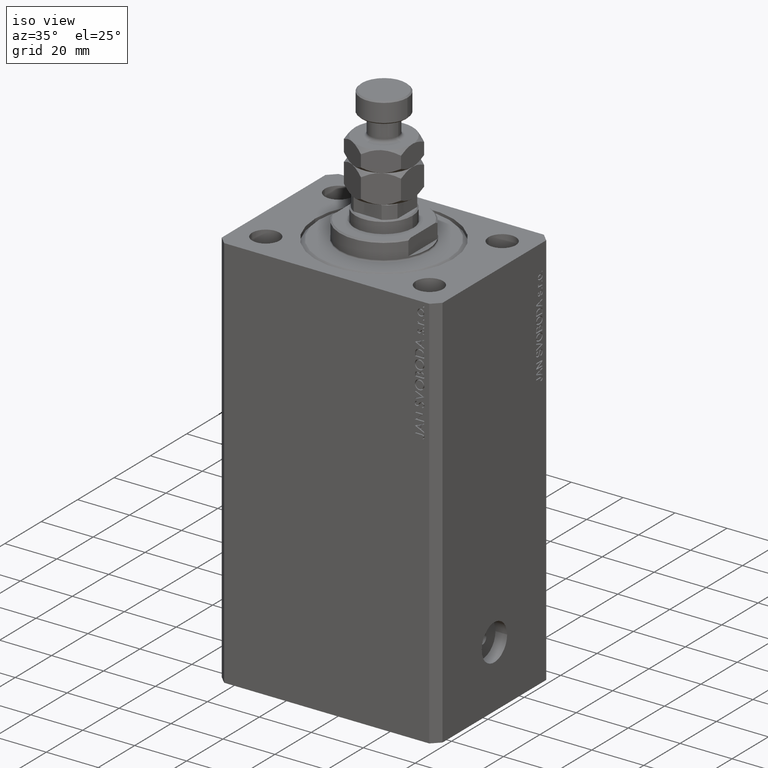
[diagram: clean part render]
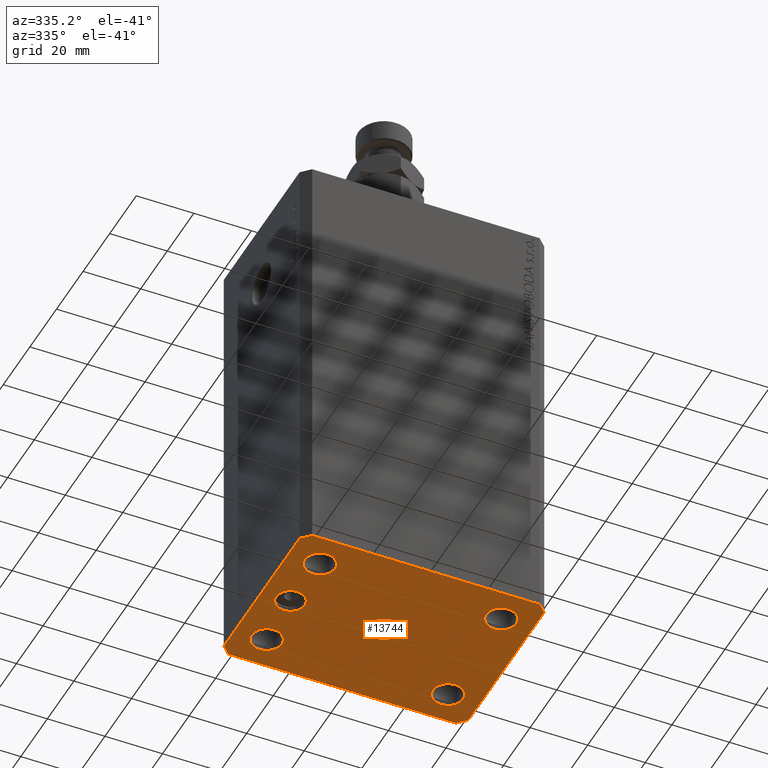
[diagram: tour spotlight — one face highlighted and labeled with its STEP entity id]
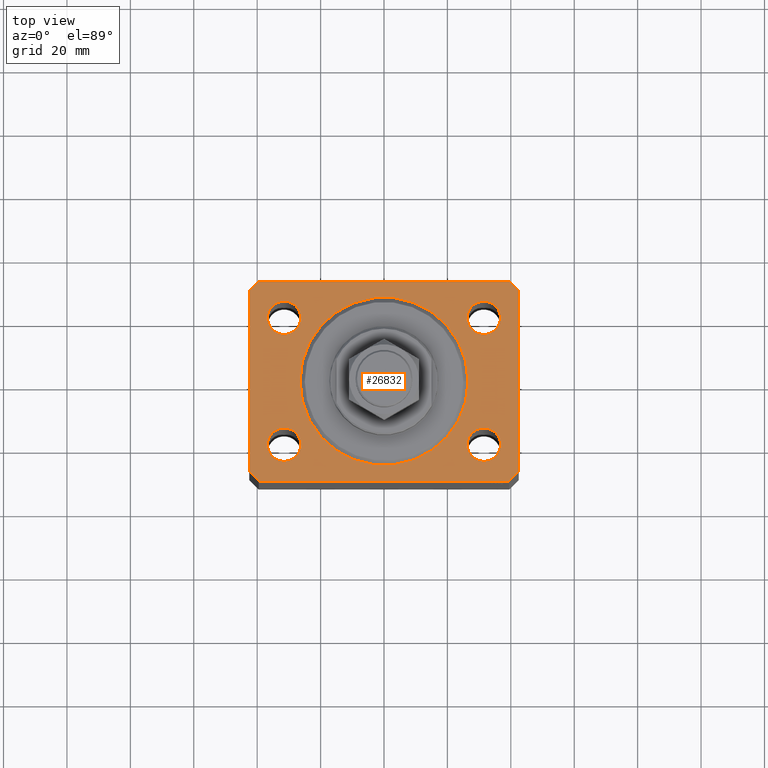
[diagram: tour spotlight — one face highlighted and labeled with its STEP entity id]
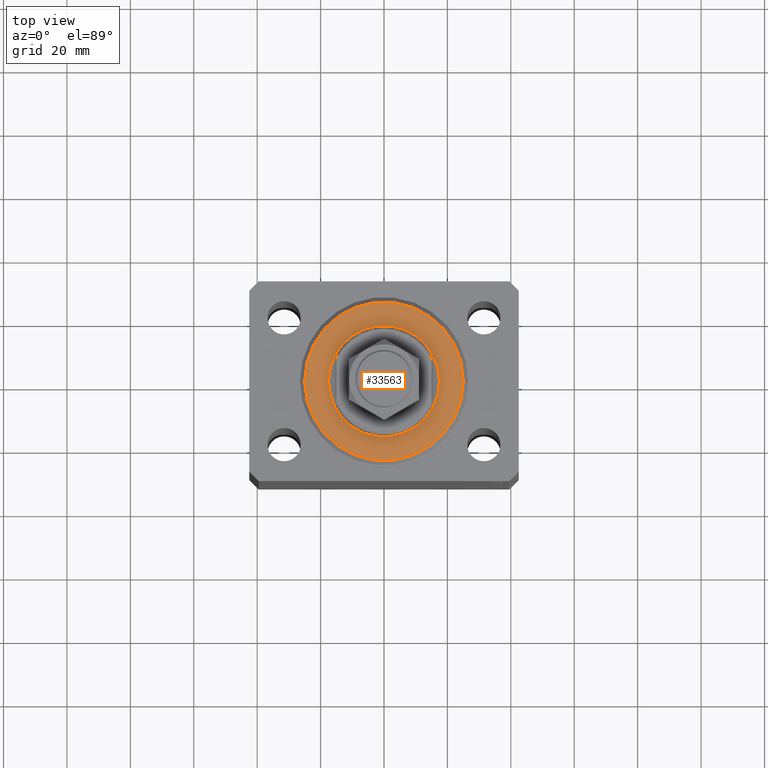
[diagram: tour spotlight — one face highlighted and labeled with its STEP entity id]
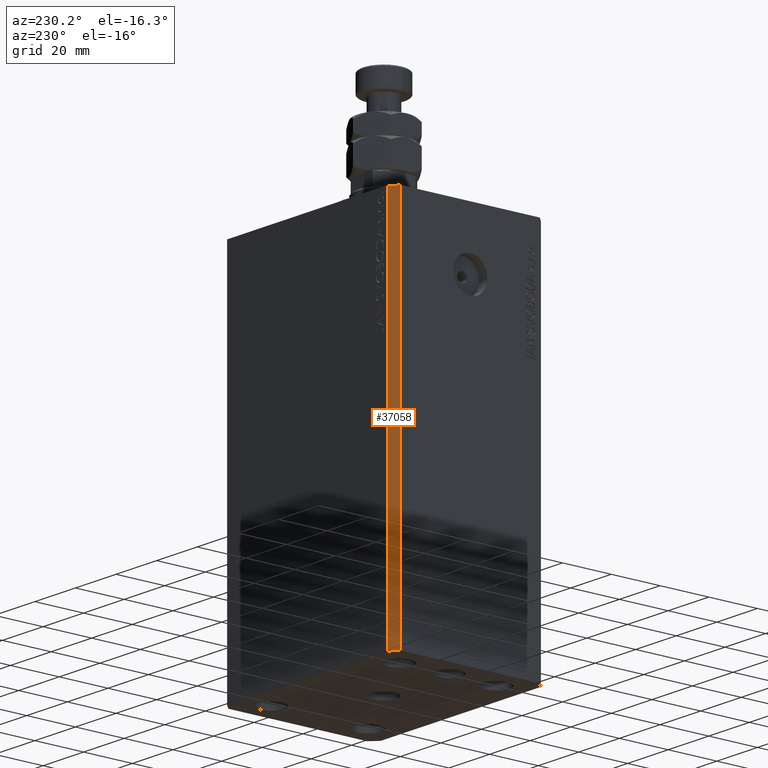
[diagram: tour spotlight — one face highlighted and labeled with its STEP entity id]
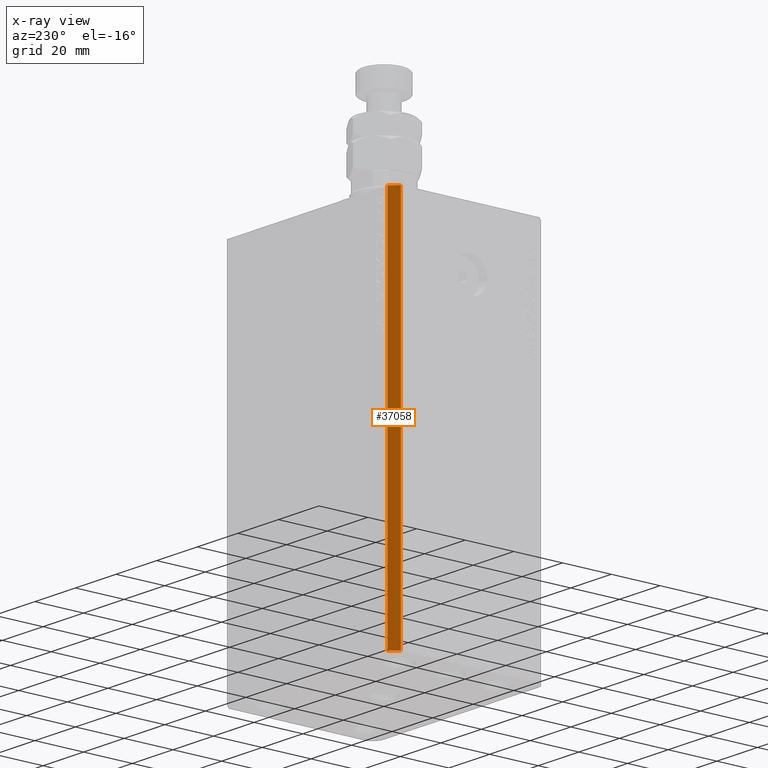
[diagram: x-ray of the same camera — body ghosted, this tour face saturated]
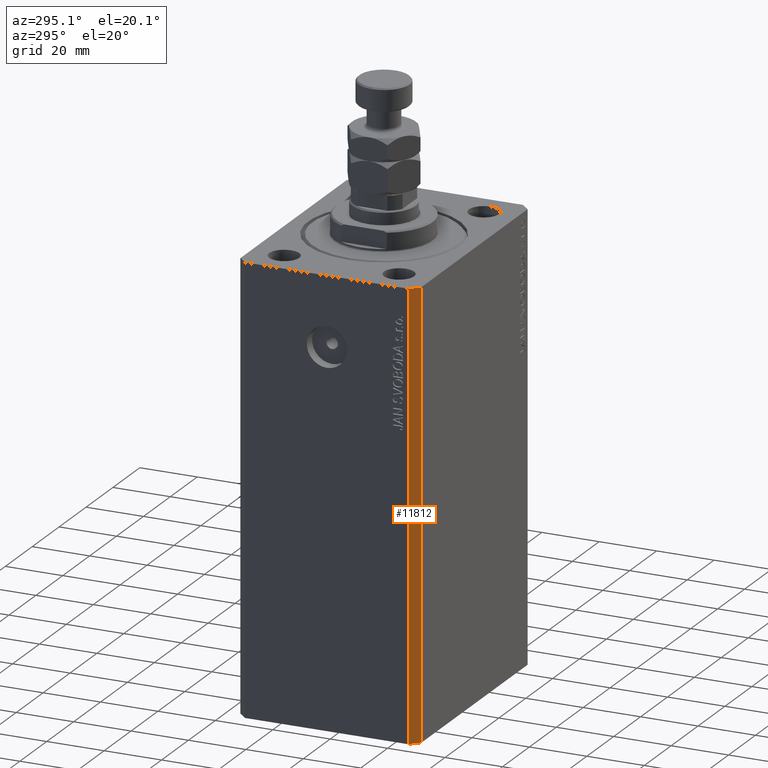
[diagram: tour spotlight — one face highlighted and labeled with its STEP entity id]
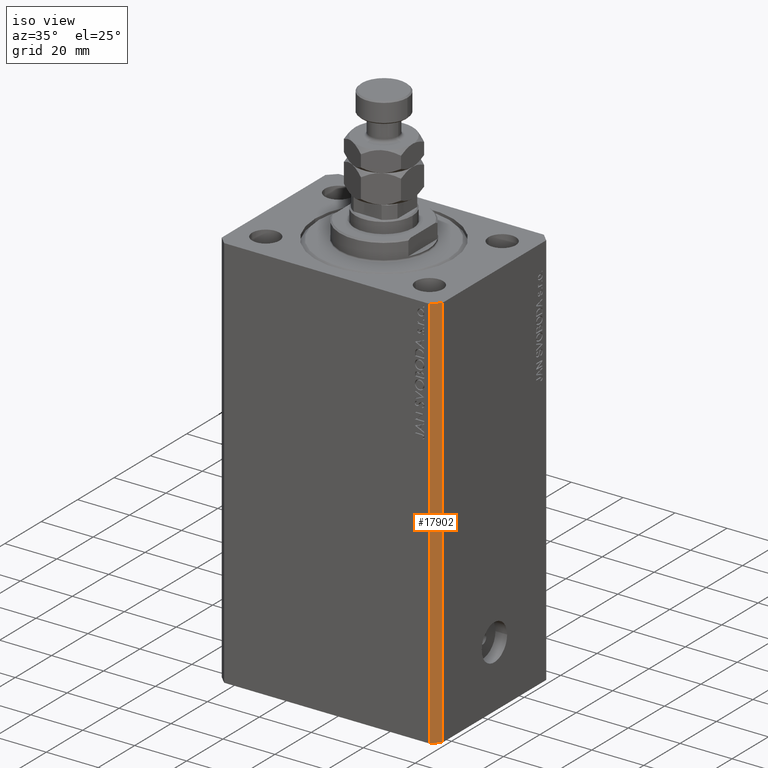
[diagram: tour spotlight — one face highlighted and labeled with its STEP entity id]
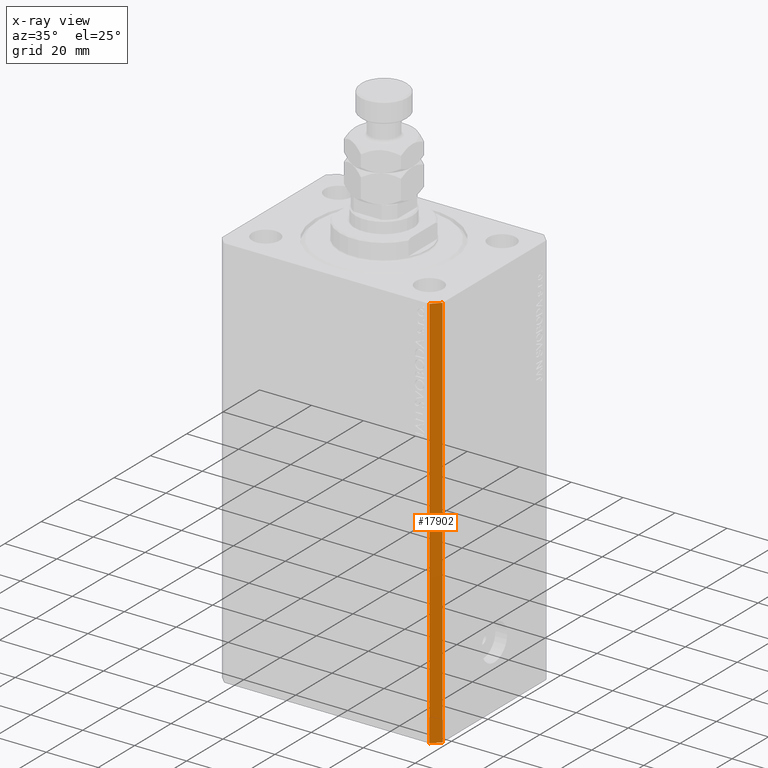
[diagram: x-ray of the same camera — body ghosted, this tour face saturated]
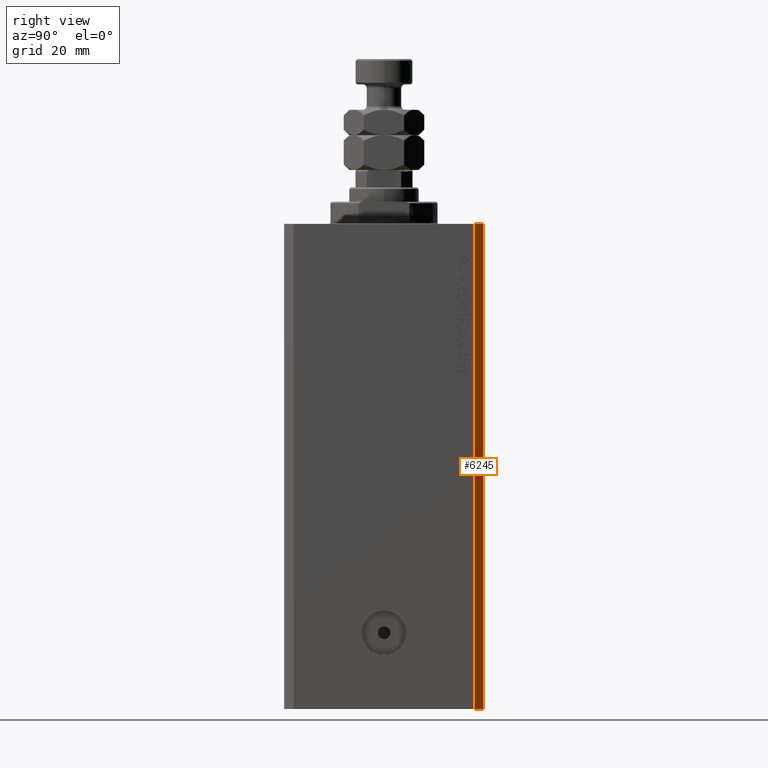
[diagram: tour spotlight — one face highlighted and labeled with its STEP entity id]
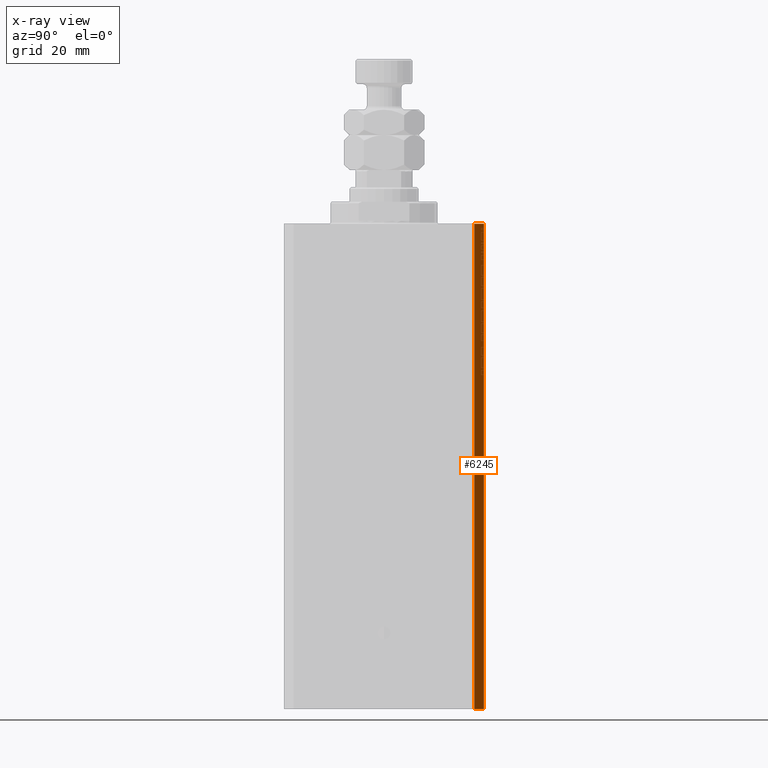
[diagram: x-ray of the same camera — body ghosted, this tour face saturated]
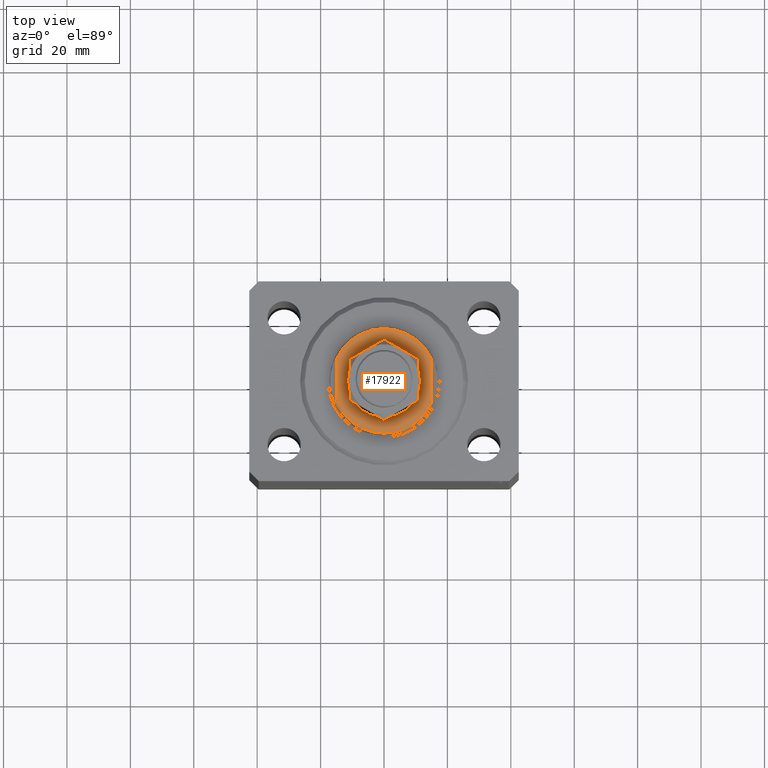
[diagram: tour spotlight — one face highlighted and labeled with its STEP entity id]
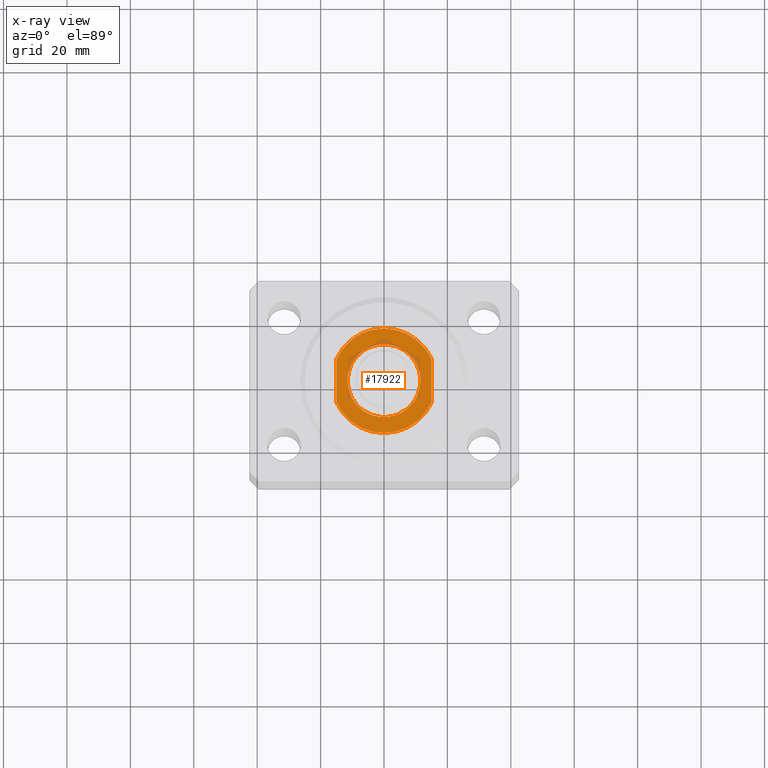
[diagram: x-ray of the same camera — body ghosted, this tour face saturated]
A machine part: a face-by-face anatomy tour. The part has 920 B-rep faces; the first image is the clean iso view, then the 8 largest visible faces are spotlighted one at a time (largest first), each with its STEP entity span.

Face 1 — auxiliary view, entity #13744. In plain terms, the highlighted planar face has unit normal (0, 0, 1).
Definition (entity closure, byte-faithful):
#28 = EDGE_LOOP ( 'NONE', ( #35329, #3301 ) ) ;
#70 = LINE ( 'NONE', #14583, #18936 ) ;
#258 = DIRECTION ( 'NONE',  ( -0.7071067811865356934, 0.7071067811865594521, 0.000000000000000000 ) ) ;
#385 = CARTESIAN_POINT ( 'NONE',  ( -27.50000000000000355, 6.123233995736762338E-16, -153.0000000000000000 ) ) ;
#1248 = CARTESIAN_POINT ( 'NONE',  ( -31.50000000000000000, 19.99999999999999645, -153.0000000000000000 ) ) ;
#1291 = CARTESIAN_POINT ( 'NONE',  ( -32.50000000000000000, 0.000000000000000000, -153.0000000000000000 ) ) ;
#1389 = AXIS2_PLACEMENT_3D ( 'NONE', #26791, #23047, #16042 ) ;
#1489 = ORIENTED_EDGE ( 'NONE', *, *, #35164, .F. ) ;
#1900 = CARTESIAN_POINT ( 'NONE',  ( -37.50000000000000000, 0.000000000000000000, -153.0000000000000000 ) ) ;
#1979 = DIRECTION ( 'NONE',  ( 0.7071067811865483499, 0.7071067811865466846, 0.000000000000000000 ) ) ;
#2076 = CARTESIAN_POINT ( 'NONE',  ( -39.50000000000000711, -31.50000000000000000, -153.0000000000000000 ) ) ;
#2146 = VERTEX_POINT ( 'NONE', #11502 ) ;
#2191 = AXIS2_PLACEMENT_3D ( 'NONE', #4180, #21499, #36672 ) ;
#3087 = CARTESIAN_POINT ( 'NONE',  ( 42.50000000000051870, 28.49999999999995381, -153.0000000000000000 ) ) ;
#3138 = DIRECTION ( 'NONE',  ( 0.000000000000000000, 0.000000000000000000, -1.000000000000000000 ) ) ;
#3301 = ORIENTED_EDGE ( 'NONE', *, *, #22413, .F. ) ;
#4180 = CARTESIAN_POINT ( 'NONE',  ( 31.50000000000000000, 19.99999999999999289, -153.0000000000000000 ) ) ;
#4523 = ORIENTED_EDGE ( 'NONE', *, *, #33166, .F. ) ;
#4795 = CIRCLE ( 'NONE', #36144, 5.000000000000000000 ) ;
#4963 = AXIS2_PLACEMENT_3D ( 'NONE', #17639, #3138, #20698 ) ;
#5173 = CIRCLE ( 'NONE', #2191, 5.249999999999997335 ) ;
#5254 = LINE ( 'NONE', #36612, #16120 ) ;
#5673 = VERTEX_POINT ( 'NONE', #21958 ) ;
#5698 = CARTESIAN_POINT ( 'NONE',  ( 31.50000000000000000, 19.99999999999999289, -153.0000000000000000 ) ) ;
#5745 = DIRECTION ( 'NONE',  ( 0.000000000000000000, 0.000000000000000000, -1.000000000000000000 ) ) ;
#5797 = ORIENTED_EDGE ( 'NONE', *, *, #17443, .F. ) ;
#6184 = EDGE_CURVE ( 'NONE', #10396, #32445, #44540, .T. ) ;
#6199 = EDGE_CURVE ( 'NONE', #7055, #19336, #9470, .T. ) ;
#6489 = CARTESIAN_POINT ( 'NONE',  ( -39.50000000000000711, 31.50000000000000000, -153.0000000000000000 ) ) ;
#7055 = VERTEX_POINT ( 'NONE', #385 ) ;
#7156 = ORIENTED_EDGE ( 'NONE', *, *, #11644, .F. ) ;
#7485 = AXIS2_PLACEMENT_3D ( 'NONE', #1291, #5745, #26789 ) ;
#7619 = AXIS2_PLACEMENT_3D ( 'NONE', #29590, #46262, #39007 ) ;
#7698 = FACE_BOUND ( 'NONE', #24253, .T. ) ;
#7719 = ORIENTED_EDGE ( 'NONE', *, *, #6184, .F. ) ;
#7884 = CIRCLE ( 'NONE', #19094, 5.249999999999997335 ) ;
#8328 = ORIENTED_EDGE ( 'NONE', *, *, #17158, .F. ) ;
#8535 = CARTESIAN_POINT ( 'NONE',  ( 39.50000000000000711, -31.50000000000000000, -153.0000000000000000 ) ) ;
#8661 = VECTOR ( 'NONE', #46221, 1000.000000000000000 ) ;
#8779 = FACE_BOUND ( 'NONE', #30116, .T. ) ;
#9470 = CIRCLE ( 'NONE', #4963, 4.999999999999997335 ) ;
#9562 = DIRECTION ( 'NONE',  ( 1.000000000000000000, 0.000000000000000000, 0.000000000000000000 ) ) ;
#9704 = CARTESIAN_POINT ( 'NONE',  ( 36.75000000000000000, 19.99999999999999289, -153.0000000000000000 ) ) ;
#9855 = ORIENTED_EDGE ( 'NONE', *, *, #25476, .F. ) ;
#10171 = EDGE_CURVE ( 'NONE', #16767, #5673, #15825, .T. ) ;
#10396 = VERTEX_POINT ( 'NONE', #14356 ) ;
#11502 = CARTESIAN_POINT ( 'NONE',  ( 39.50000000000056843, 31.50000000000000000, -153.0000000000000000 ) ) ;
#11644 = EDGE_CURVE ( 'NONE', #5673, #16767, #23889, .T. ) ;
#12239 = DIRECTION ( 'NONE',  ( 1.000000000000000000, 0.000000000000000000, 0.000000000000000000 ) ) ;
#12306 = EDGE_CURVE ( 'NONE', #2146, #29290, #70, .T. ) ;
#13067 = EDGE_LOOP ( 'NONE', ( #7719, #9855 ) ) ;
#13744 = ADVANCED_FACE ( 'NONE', ( #40826, #8779, #14491, #43237, #43474, #7698, #25480 ), #32710, .F. ) ;
#14280 = AXIS2_PLACEMENT_3D ( 'NONE', #37215, #15718, #44233 ) ;
#14356 = CARTESIAN_POINT ( 'NONE',  ( -26.24999999999999289, -20.00000000000000355, -153.0000000000000000 ) ) ;
#14491 = FACE_BOUND ( 'NONE', #13067, .T. ) ;
#14583 = CARTESIAN_POINT ( 'NONE',  ( 39.50000000000056843, 31.50000000000000000, -153.0000000000000000 ) ) ;
#14702 = VERTEX_POINT ( 'NONE', #26169 ) ;
#14841 = DIRECTION ( 'NONE',  ( -0.000000000000000000, -0.000000000000000000, -1.000000000000000000 ) ) ;
#15718 = DIRECTION ( 'NONE',  ( -0.000000000000000000, -0.000000000000000000, -1.000000000000000000 ) ) ;
#15825 = CIRCLE ( 'NONE', #7619, 5.249999999999997335 ) ;
#16017 = EDGE_CURVE ( 'NONE', #17541, #24177, #5173, .T. ) ;
#16042 = DIRECTION ( 'NONE',  ( 1.000000000000000000, 0.000000000000000000, -0.000000000000000000 ) ) ;
#16120 = VECTOR ( 'NONE', #1979, 1000.000000000000000 ) ;
#16767 = VERTEX_POINT ( 'NONE', #18281 ) ;
#16883 = CARTESIAN_POINT ( 'NONE',  ( 42.50000000000000711, -28.50000000000000355, -153.0000000000000000 ) ) ;
#16914 = LINE ( 'NONE', #37945, #43595 ) ;
#17158 = EDGE_CURVE ( 'NONE', #44021, #14702, #26848, .T. ) ;
#17257 = DIRECTION ( 'NONE',  ( -1.000000000000000000, 0.000000000000000000, 0.000000000000000000 ) ) ;
#17371 = VERTEX_POINT ( 'NONE', #26560 ) ;
#17443 = EDGE_CURVE ( 'NONE', #19336, #7055, #44057, .T. ) ;
#17541 = VERTEX_POINT ( 'NONE', #9704 ) ;
#17639 = CARTESIAN_POINT ( 'NONE',  ( -32.50000000000000000, 0.000000000000000000, -153.0000000000000000 ) ) ;
#18281 = CARTESIAN_POINT ( 'NONE',  ( 36.74999999999999289, -20.00000000000000355, -153.0000000000000000 ) ) ;
#18936 = VECTOR ( 'NONE', #28845, 1000.000000000000000 ) ;
#19094 = AXIS2_PLACEMENT_3D ( 'NONE', #5698, #23236, #12239 ) ;
#19169 = ORIENTED_EDGE ( 'NONE', *, *, #43916, .F. ) ;
#19336 = VERTEX_POINT ( 'NONE', #1900 ) ;
#19498 = CIRCLE ( 'NONE', #30708, 5.250000000000000888 ) ;
#19839 = CARTESIAN_POINT ( 'NONE',  ( 5.000000000000000000, 6.123233995736765296E-16, -153.0000000000000000 ) ) ;
#20322 = ORIENTED_EDGE ( 'NONE', *, *, #12306, .F. ) ;
#20663 = AXIS2_PLACEMENT_3D ( 'NONE', #1248, #14841, #32832 ) ;
#20698 = DIRECTION ( 'NONE',  ( -1.000000000000000000, 0.000000000000000000, 0.000000000000000000 ) ) ;
#21192 = CARTESIAN_POINT ( 'NONE',  ( -31.50000000000000000, 19.99999999999999645, -153.0000000000000000 ) ) ;
#21324 = LINE ( 'NONE', #28571, #34437 ) ;
#21386 = DIRECTION ( 'NONE',  ( -0.000000000000000000, -0.000000000000000000, -1.000000000000000000 ) ) ;
#21499 = DIRECTION ( 'NONE',  ( -0.000000000000000000, -0.000000000000000000, -1.000000000000000000 ) ) ;
#21654 = ORIENTED_EDGE ( 'NONE', *, *, #42724, .F. ) ;
#21958 = CARTESIAN_POINT ( 'NONE',  ( 26.24999999999999645, -20.00000000000000355, -153.0000000000000000 ) ) ;
#22071 = CIRCLE ( 'NONE', #26531, 5.250000000000000888 ) ;
#22089 = ORIENTED_EDGE ( 'NONE', *, *, #40647, .F. ) ;
#22167 = CIRCLE ( 'NONE', #20663, 5.250000000000000888 ) ;
#22365 = LINE ( 'NONE', #29609, #32942 ) ;
#22413 = EDGE_CURVE ( 'NONE', #26303, #17371, #26911, .T. ) ;
#22497 = DIRECTION ( 'NONE',  ( -1.000000000000000000, 0.000000000000000000, 0.000000000000000000 ) ) ;
#23047 = DIRECTION ( 'NONE',  ( 0.000000000000000000, 0.000000000000000000, 1.000000000000000000 ) ) ;
#23236 = DIRECTION ( 'NONE',  ( -0.000000000000000000, -0.000000000000000000, -1.000000000000000000 ) ) ;
#23334 = ORIENTED_EDGE ( 'NONE', *, *, #46209, .F. ) ;
#23589 = CARTESIAN_POINT ( 'NONE',  ( 0.000000000000000000, 0.000000000000000000, -153.0000000000000000 ) ) ;
#23889 = CIRCLE ( 'NONE', #14280, 5.249999999999997335 ) ;
#24177 = VERTEX_POINT ( 'NONE', #46270 ) ;
#24253 = EDGE_LOOP ( 'NONE', ( #19169, #26727 ) ) ;
#24613 = CARTESIAN_POINT ( 'NONE',  ( -42.50000000000000000, 28.50000000000000000, -153.0000000000000000 ) ) ;
#24776 = EDGE_CURVE ( 'NONE', #25984, #2146, #21324, .T. ) ;
#25310 = CARTESIAN_POINT ( 'NONE',  ( 0.000000000000000000, 0.000000000000000000, -153.0000000000000000 ) ) ;
#25417 = EDGE_CURVE ( 'NONE', #14702, #29261, #22365, .T. ) ;
#25476 = EDGE_CURVE ( 'NONE', #32445, #10396, #19498, .T. ) ;
#25480 = FACE_OUTER_BOUND ( 'NONE', #29169, .T. ) ;
#25535 = CARTESIAN_POINT ( 'NONE',  ( -36.74999999999999289, -20.00000000000000355, -153.0000000000000000 ) ) ;
#25904 = AXIS2_PLACEMENT_3D ( 'NONE', #45238, #21386, #45930 ) ;
#25984 = VERTEX_POINT ( 'NONE', #3087 ) ;
#26169 = CARTESIAN_POINT ( 'NONE',  ( -42.50000000000000000, -28.50000000000000000, -153.0000000000000000 ) ) ;
#26303 = VERTEX_POINT ( 'NONE', #19839 ) ;
#26531 = AXIS2_PLACEMENT_3D ( 'NONE', #21192, #30794, #38488 ) ;
#26560 = CARTESIAN_POINT ( 'NONE',  ( -5.000000000000000000, 0.000000000000000000, -153.0000000000000000 ) ) ;
#26727 = ORIENTED_EDGE ( 'NONE', *, *, #39767, .F. ) ;
#26789 = DIRECTION ( 'NONE',  ( -1.000000000000000000, 0.000000000000000000, 0.000000000000000000 ) ) ;
#26791 = CARTESIAN_POINT ( 'NONE',  ( 0.000000000000000000, 0.000000000000000000, -153.0000000000000000 ) ) ;
#26848 = LINE ( 'NONE', #27080, #32848 ) ;
#26879 = LINE ( 'NONE', #2076, #41321 ) ;
#26911 = CIRCLE ( 'NONE', #31378, 5.000000000000000000 ) ;
#27080 = CARTESIAN_POINT ( 'NONE',  ( -42.50000000000000000, 28.50000000000000000, -153.0000000000000000 ) ) ;
#28571 = CARTESIAN_POINT ( 'NONE',  ( 42.50000000000051870, 28.49999999999995381, -153.0000000000000000 ) ) ;
#28845 = DIRECTION ( 'NONE',  ( -1.000000000000000000, 0.000000000000000000, 0.000000000000000000 ) ) ;
#29169 = EDGE_LOOP ( 'NONE', ( #20322, #40376, #4523, #22089, #1489, #36608, #8328, #21654 ) ) ;
#29261 = VERTEX_POINT ( 'NONE', #33274 ) ;
#29290 = VERTEX_POINT ( 'NONE', #45347 ) ;
#29590 = CARTESIAN_POINT ( 'NONE',  ( 31.49999999999999289, -20.00000000000000355, -153.0000000000000000 ) ) ;
#29609 = CARTESIAN_POINT ( 'NONE',  ( -42.50000000000000000, -28.50000000000000000, -153.0000000000000000 ) ) ;
#29831 = DIRECTION ( 'NONE',  ( 0.7071067811865471286, -0.7071067811865479058, 0.000000000000000000 ) ) ;
#30116 = EDGE_LOOP ( 'NONE', ( #5797, #35411 ) ) ;
#30708 = AXIS2_PLACEMENT_3D ( 'NONE', #41047, #40585, #37771 ) ;
#30794 = DIRECTION ( 'NONE',  ( -0.000000000000000000, -0.000000000000000000, -1.000000000000000000 ) ) ;
#30826 = DIRECTION ( 'NONE',  ( 0.000000000000000000, 0.000000000000000000, -1.000000000000000000 ) ) ;
#31378 = AXIS2_PLACEMENT_3D ( 'NONE', #25310, #40487, #22497 ) ;
#31466 = VERTEX_POINT ( 'NONE', #8535 ) ;
#32445 = VERTEX_POINT ( 'NONE', #25535 ) ;
#32710 = PLANE ( 'NONE',  #1389 ) ;
#32832 = DIRECTION ( 'NONE',  ( 1.000000000000000000, 0.000000000000000000, 0.000000000000000000 ) ) ;
#32848 = VECTOR ( 'NONE', #44142, 1000.000000000000000 ) ;
#32942 = VECTOR ( 'NONE', #29831, 1000.000000000000000 ) ;
#33166 = EDGE_CURVE ( 'NONE', #34881, #25984, #16914, .T. ) ;
#33239 = ORIENTED_EDGE ( 'NONE', *, *, #16017, .F. ) ;
#33274 = CARTESIAN_POINT ( 'NONE',  ( -39.50000000000000711, -31.50000000000000000, -153.0000000000000000 ) ) ;
#34437 = VECTOR ( 'NONE', #258, 1000.000000000000114 ) ;
#34881 = VERTEX_POINT ( 'NONE', #16883 ) ;
#35164 = EDGE_CURVE ( 'NONE', #29261, #31466, #26879, .T. ) ;
#35329 = ORIENTED_EDGE ( 'NONE', *, *, #37819, .F. ) ;
#35411 = ORIENTED_EDGE ( 'NONE', *, *, #6199, .F. ) ;
#36144 = AXIS2_PLACEMENT_3D ( 'NONE', #23589, #30826, #17257 ) ;
#36608 = ORIENTED_EDGE ( 'NONE', *, *, #25417, .F. ) ;
#36612 = CARTESIAN_POINT ( 'NONE',  ( 39.50000000000000711, -31.50000000000000000, -153.0000000000000000 ) ) ;
#36672 = DIRECTION ( 'NONE',  ( 1.000000000000000000, 0.000000000000000000, 0.000000000000000000 ) ) ;
#37215 = CARTESIAN_POINT ( 'NONE',  ( 31.49999999999999289, -20.00000000000000355, -153.0000000000000000 ) ) ;
#37640 = VERTEX_POINT ( 'NONE', #43714 ) ;
#37771 = DIRECTION ( 'NONE',  ( 1.000000000000000000, 0.000000000000000000, 0.000000000000000000 ) ) ;
#37819 = EDGE_CURVE ( 'NONE', #17371, #26303, #4795, .T. ) ;
#37945 = CARTESIAN_POINT ( 'NONE',  ( 42.50000000000000711, -28.50000000000000355, -153.0000000000000000 ) ) ;
#38488 = DIRECTION ( 'NONE',  ( 1.000000000000000000, 0.000000000000000000, 0.000000000000000000 ) ) ;
#38878 = VERTEX_POINT ( 'NONE', #41996 ) ;
#39007 = DIRECTION ( 'NONE',  ( 1.000000000000000000, 0.000000000000000000, 0.000000000000000000 ) ) ;
#39767 = EDGE_CURVE ( 'NONE', #38878, #37640, #22071, .T. ) ;
#40376 = ORIENTED_EDGE ( 'NONE', *, *, #24776, .F. ) ;
#40487 = DIRECTION ( 'NONE',  ( 0.000000000000000000, 0.000000000000000000, -1.000000000000000000 ) ) ;
#40585 = DIRECTION ( 'NONE',  ( -0.000000000000000000, -0.000000000000000000, -1.000000000000000000 ) ) ;
#40647 = EDGE_CURVE ( 'NONE', #31466, #34881, #5254, .T. ) ;
#40826 = FACE_BOUND ( 'NONE', #28, .T. ) ;
#41047 = CARTESIAN_POINT ( 'NONE',  ( -31.49999999999999289, -20.00000000000000355, -153.0000000000000000 ) ) ;
#41321 = VECTOR ( 'NONE', #9562, 1000.000000000000000 ) ;
#41453 = EDGE_LOOP ( 'NONE', ( #33239, #23334 ) ) ;
#41996 = CARTESIAN_POINT ( 'NONE',  ( -36.75000000000000000, 19.99999999999999645, -153.0000000000000000 ) ) ;
#42715 = LINE ( 'NONE', #6489, #8661 ) ;
#42724 = EDGE_CURVE ( 'NONE', #29290, #44021, #42715, .T. ) ;
#43008 = EDGE_LOOP ( 'NONE', ( #44817, #7156 ) ) ;
#43237 = FACE_BOUND ( 'NONE', #43008, .T. ) ;
#43474 = FACE_BOUND ( 'NONE', #41453, .T. ) ;
#43595 = VECTOR ( 'NONE', #45423, 1000.000000000000000 ) ;
#43714 = CARTESIAN_POINT ( 'NONE',  ( -26.25000000000000000, 19.99999999999999645, -153.0000000000000000 ) ) ;
#43916 = EDGE_CURVE ( 'NONE', #37640, #38878, #22167, .T. ) ;
#44021 = VERTEX_POINT ( 'NONE', #24613 ) ;
#44057 = CIRCLE ( 'NONE', #7485, 4.999999999999997335 ) ;
#44142 = DIRECTION ( 'NONE',  ( 0.000000000000000000, -1.000000000000000000, 0.000000000000000000 ) ) ;
#44233 = DIRECTION ( 'NONE',  ( 1.000000000000000000, 0.000000000000000000, 0.000000000000000000 ) ) ;
#44540 = CIRCLE ( 'NONE', #25904, 5.250000000000000888 ) ;
#44817 = ORIENTED_EDGE ( 'NONE', *, *, #10171, .F. ) ;
#45238 = CARTESIAN_POINT ( 'NONE',  ( -31.49999999999999289, -20.00000000000000355, -153.0000000000000000 ) ) ;
#45347 = CARTESIAN_POINT ( 'NONE',  ( -39.50000000000000711, 31.50000000000000000, -153.0000000000000000 ) ) ;
#45423 = DIRECTION ( 'NONE',  ( 8.886653596232072440E-15, 1.000000000000000000, 0.000000000000000000 ) ) ;
#45930 = DIRECTION ( 'NONE',  ( 1.000000000000000000, 0.000000000000000000, 0.000000000000000000 ) ) ;
#46209 = EDGE_CURVE ( 'NONE', #24177, #17541, #7884, .T. ) ;
#46221 = DIRECTION ( 'NONE',  ( -0.7071067811865471286, -0.7071067811865479058, 0.000000000000000000 ) ) ;
#46262 = DIRECTION ( 'NONE',  ( -0.000000000000000000, -0.000000000000000000, -1.000000000000000000 ) ) ;
#46270 = CARTESIAN_POINT ( 'NONE',  ( 26.25000000000000355, 19.99999999999999289, -153.0000000000000000 ) ) ;

Face 2 — top view, entity #26832. In plain terms, the highlighted planar face has unit normal (0, 0, 1).
Definition (entity closure, byte-faithful):
#334 = EDGE_CURVE ( 'NONE', #31454, #45079, #27850, .T. ) ;
#607 = VERTEX_POINT ( 'NONE', #22025 ) ;
#748 = EDGE_LOOP ( 'NONE', ( #19420, #8171, #17288, #15811, #2389, #38158, #15195, #11361 ) ) ;
#1148 = DIRECTION ( 'NONE',  ( 1.000000000000000000, 0.000000000000000000, 0.000000000000000000 ) ) ;
#1306 = CARTESIAN_POINT ( 'NONE',  ( -31.49999999999999289, -20.00000000000000355, 0.000000000000000000 ) ) ;
#1754 = DIRECTION ( 'NONE',  ( -0.7071067811865471286, -0.7071067811865479058, 0.000000000000000000 ) ) ;
#2325 = AXIS2_PLACEMENT_3D ( 'NONE', #31098, #8889, #37411 ) ;
#2389 = ORIENTED_EDGE ( 'NONE', *, *, #16610, .T. ) ;
#2588 = EDGE_LOOP ( 'NONE', ( #28369, #16333 ) ) ;
#2659 = CARTESIAN_POINT ( 'NONE',  ( -42.50000000000000000, -28.50000000000000000, 0.000000000000000000 ) ) ;
#3006 = DIRECTION ( 'NONE',  ( 1.000000000000000000, 0.000000000000000000, 0.000000000000000000 ) ) ;
#3240 = CARTESIAN_POINT ( 'NONE',  ( 31.50000000000000000, 19.99999999999999289, 0.000000000000000000 ) ) ;
#4348 = EDGE_CURVE ( 'NONE', #8319, #38554, #27248, .T. ) ;
#5458 = CARTESIAN_POINT ( 'NONE',  ( 0.000000000000000000, 0.000000000000000000, 0.000000000000000000 ) ) ;
#5958 = ORIENTED_EDGE ( 'NONE', *, *, #25060, .F. ) ;
#5999 = ORIENTED_EDGE ( 'NONE', *, *, #32213, .F. ) ;
#6017 = EDGE_LOOP ( 'NONE', ( #16212, #14612 ) ) ;
#6182 = DIRECTION ( 'NONE',  ( 0.7071067811865483499, 0.7071067811865466846, 0.000000000000000000 ) ) ;
#6234 = CARTESIAN_POINT ( 'NONE',  ( 26.25000000000000355, 19.99999999999999289, 0.000000000000000000 ) ) ;
#6507 = EDGE_CURVE ( 'NONE', #32616, #11130, #8494, .T. ) ;
#6624 = CARTESIAN_POINT ( 'NONE',  ( 36.74999999999999289, -20.00000000000000355, 0.000000000000000000 ) ) ;
#6730 = ORIENTED_EDGE ( 'NONE', *, *, #28578, .F. ) ;
#6806 = CIRCLE ( 'NONE', #2325, 26.50000000000000355 ) ;
#6872 = AXIS2_PLACEMENT_3D ( 'NONE', #1306, #15585, #11836 ) ;
#6894 = DIRECTION ( 'NONE',  ( 8.886653596232072440E-15, 1.000000000000000000, 0.000000000000000000 ) ) ;
#7146 = ORIENTED_EDGE ( 'NONE', *, *, #15478, .F. ) ;
#7579 = CARTESIAN_POINT ( 'NONE',  ( 31.50000000000000000, 19.99999999999999289, 0.000000000000000000 ) ) ;
#7933 = EDGE_CURVE ( 'NONE', #27015, #28595, #15800, .T. ) ;
#7987 = DIRECTION ( 'NONE',  ( 1.000000000000000000, 0.000000000000000000, 0.000000000000000000 ) ) ;
#8089 = CARTESIAN_POINT ( 'NONE',  ( -26.50000000000000355, 3.245314017740486554E-15, 0.000000000000000000 ) ) ;
#8171 = ORIENTED_EDGE ( 'NONE', *, *, #42997, .T. ) ;
#8181 = VECTOR ( 'NONE', #6182, 1000.000000000000000 ) ;
#8201 = CARTESIAN_POINT ( 'NONE',  ( -39.50000000000000711, -31.50000000000000000, 0.000000000000000000 ) ) ;
#8319 = VERTEX_POINT ( 'NONE', #14343 ) ;
#8494 = LINE ( 'NONE', #40528, #22163 ) ;
#8889 = DIRECTION ( 'NONE',  ( 0.000000000000000000, 0.000000000000000000, 1.000000000000000000 ) ) ;
#8959 = FACE_BOUND ( 'NONE', #2588, .T. ) ;
#9026 = EDGE_LOOP ( 'NONE', ( #26890, #7146 ) ) ;
#9433 = FACE_BOUND ( 'NONE', #6017, .T. ) ;
#9775 = CARTESIAN_POINT ( 'NONE',  ( 31.49999999999999289, -20.00000000000000355, 0.000000000000000000 ) ) ;
#9841 = CARTESIAN_POINT ( 'NONE',  ( 39.50000000000000711, -31.50000000000000000, 0.000000000000000000 ) ) ;
#10139 = DIRECTION ( 'NONE',  ( 0.7071067811865471286, -0.7071067811865479058, 0.000000000000000000 ) ) ;
#10358 = EDGE_CURVE ( 'NONE', #34081, #10434, #41721, .T. ) ;
#10434 = VERTEX_POINT ( 'NONE', #32808 ) ;
#11080 = EDGE_CURVE ( 'NONE', #38554, #8319, #19567, .T. ) ;
#11094 = CARTESIAN_POINT ( 'NONE',  ( 42.50000000000000711, -28.50000000000000355, 0.000000000000000000 ) ) ;
#11130 = VERTEX_POINT ( 'NONE', #26580 ) ;
#11245 = EDGE_CURVE ( 'NONE', #18198, #34081, #25613, .T. ) ;
#11361 = ORIENTED_EDGE ( 'NONE', *, *, #18288, .T. ) ;
#11825 = CARTESIAN_POINT ( 'NONE',  ( -42.50000000000000000, 28.50000000000000000, 0.000000000000000000 ) ) ;
#11836 = DIRECTION ( 'NONE',  ( 1.000000000000000000, 0.000000000000000000, 0.000000000000000000 ) ) ;
#11898 = CARTESIAN_POINT ( 'NONE',  ( -26.24999999999999289, -20.00000000000000355, 0.000000000000000000 ) ) ;
#13927 = DIRECTION ( 'NONE',  ( 0.000000000000000000, -1.000000000000000000, 0.000000000000000000 ) ) ;
#14120 = VERTEX_POINT ( 'NONE', #44274 ) ;
#14343 = CARTESIAN_POINT ( 'NONE',  ( -36.74999999999999289, -20.00000000000000355, 0.000000000000000000 ) ) ;
#14392 = CIRCLE ( 'NONE', #15124, 5.249999999999997335 ) ;
#14612 = ORIENTED_EDGE ( 'NONE', *, *, #4348, .F. ) ;
#15124 = AXIS2_PLACEMENT_3D ( 'NONE', #3240, #27579, #3006 ) ;
#15195 = ORIENTED_EDGE ( 'NONE', *, *, #18460, .T. ) ;
#15203 = DIRECTION ( 'NONE',  ( 0.000000000000000000, 0.000000000000000000, 1.000000000000000000 ) ) ;
#15392 = DIRECTION ( 'NONE',  ( 1.000000000000000000, 0.000000000000000000, 0.000000000000000000 ) ) ;
#15450 = CARTESIAN_POINT ( 'NONE',  ( 42.50000000000051870, 28.49999999999995381, 0.000000000000000000 ) ) ;
#15478 = EDGE_CURVE ( 'NONE', #45079, #31454, #20845, .T. ) ;
#15585 = DIRECTION ( 'NONE',  ( 0.000000000000000000, 0.000000000000000000, 1.000000000000000000 ) ) ;
#15762 = DIRECTION ( 'NONE',  ( 0.000000000000000000, 0.000000000000000000, 1.000000000000000000 ) ) ;
#15800 = CIRCLE ( 'NONE', #41928, 5.249999999999997335 ) ;
#15811 = ORIENTED_EDGE ( 'NONE', *, *, #10358, .T. ) ;
#15841 = EDGE_CURVE ( 'NONE', #28595, #27015, #35793, .T. ) ;
#16106 = EDGE_CURVE ( 'NONE', #35019, #17601, #30115, .T. ) ;
#16212 = ORIENTED_EDGE ( 'NONE', *, *, #11080, .F. ) ;
#16333 = ORIENTED_EDGE ( 'NONE', *, *, #15841, .F. ) ;
#16570 = VECTOR ( 'NONE', #13927, 1000.000000000000000 ) ;
#16610 = EDGE_CURVE ( 'NONE', #10434, #35019, #36729, .T. ) ;
#16999 = DIRECTION ( 'NONE',  ( 0.000000000000000000, 0.000000000000000000, 1.000000000000000000 ) ) ;
#17288 = ORIENTED_EDGE ( 'NONE', *, *, #11245, .T. ) ;
#17601 = VERTEX_POINT ( 'NONE', #11094 ) ;
#18198 = VERTEX_POINT ( 'NONE', #11825 ) ;
#18288 = EDGE_CURVE ( 'NONE', #20585, #32616, #44092, .T. ) ;
#18346 = DIRECTION ( 'NONE',  ( 0.000000000000000000, 0.000000000000000000, 1.000000000000000000 ) ) ;
#18460 = EDGE_CURVE ( 'NONE', #17601, #20585, #31684, .T. ) ;
#19368 = AXIS2_PLACEMENT_3D ( 'NONE', #30139, #15203, #1148 ) ;
#19420 = ORIENTED_EDGE ( 'NONE', *, *, #6507, .T. ) ;
#19567 = CIRCLE ( 'NONE', #6872, 5.250000000000000888 ) ;
#19770 = AXIS2_PLACEMENT_3D ( 'NONE', #37810, #16999, #41778 ) ;
#19967 = CARTESIAN_POINT ( 'NONE',  ( -42.50000000000000000, -28.50000000000000000, 0.000000000000000000 ) ) ;
#20585 = VERTEX_POINT ( 'NONE', #15450 ) ;
#20845 = CIRCLE ( 'NONE', #19368, 5.250000000000000888 ) ;
#22025 = CARTESIAN_POINT ( 'NONE',  ( 36.75000000000000000, 19.99999999999999289, 0.000000000000000000 ) ) ;
#22108 = CARTESIAN_POINT ( 'NONE',  ( -42.50000000000000000, 28.50000000000000000, 0.000000000000000000 ) ) ;
#22149 = CARTESIAN_POINT ( 'NONE',  ( 42.50000000000051870, 28.49999999999995381, 0.000000000000000000 ) ) ;
#22163 = VECTOR ( 'NONE', #26276, 1000.000000000000000 ) ;
#22311 = DIRECTION ( 'NONE',  ( 1.000000000000000000, 0.000000000000000000, 0.000000000000000000 ) ) ;
#22578 = CARTESIAN_POINT ( 'NONE',  ( -26.25000000000000000, 19.99999999999999645, 0.000000000000000000 ) ) ;
#23231 = FACE_BOUND ( 'NONE', #42510, .T. ) ;
#23443 = CIRCLE ( 'NONE', #33138, 5.249999999999997335 ) ;
#25060 = EDGE_CURVE ( 'NONE', #40572, #14120, #6806, .T. ) ;
#25459 = CARTESIAN_POINT ( 'NONE',  ( 0.000000000000000000, 0.000000000000000000, 0.000000000000000000 ) ) ;
#25613 = LINE ( 'NONE', #22108, #16570 ) ;
#25824 = DIRECTION ( 'NONE',  ( 1.000000000000000000, 0.000000000000000000, 0.000000000000000000 ) ) ;
#26045 = DIRECTION ( 'NONE',  ( 0.000000000000000000, 0.000000000000000000, 1.000000000000000000 ) ) ;
#26276 = DIRECTION ( 'NONE',  ( -1.000000000000000000, 0.000000000000000000, 0.000000000000000000 ) ) ;
#26580 = CARTESIAN_POINT ( 'NONE',  ( -39.50000000000000711, 31.50000000000000000, 0.000000000000000000 ) ) ;
#26742 = FACE_OUTER_BOUND ( 'NONE', #748, .T. ) ;
#26832 = ADVANCED_FACE ( 'NONE', ( #27212, #9433, #8959, #23231, #44732, #26742 ), #37488, .T. ) ;
#26890 = ORIENTED_EDGE ( 'NONE', *, *, #334, .F. ) ;
#26901 = DIRECTION ( 'NONE',  ( 0.000000000000000000, 0.000000000000000000, 1.000000000000000000 ) ) ;
#27010 = AXIS2_PLACEMENT_3D ( 'NONE', #5458, #15762, #44276 ) ;
#27015 = VERTEX_POINT ( 'NONE', #6624 ) ;
#27179 = AXIS2_PLACEMENT_3D ( 'NONE', #25459, #35973, #15392 ) ;
#27212 = FACE_BOUND ( 'NONE', #36086, .T. ) ;
#27248 = CIRCLE ( 'NONE', #19770, 5.250000000000000888 ) ;
#27265 = ORIENTED_EDGE ( 'NONE', *, *, #36001, .F. ) ;
#27579 = DIRECTION ( 'NONE',  ( 0.000000000000000000, 0.000000000000000000, 1.000000000000000000 ) ) ;
#27850 = CIRCLE ( 'NONE', #39050, 5.250000000000000888 ) ;
#27998 = VERTEX_POINT ( 'NONE', #6234 ) ;
#28318 = AXIS2_PLACEMENT_3D ( 'NONE', #40694, #26901, #41158 ) ;
#28369 = ORIENTED_EDGE ( 'NONE', *, *, #7933, .F. ) ;
#28578 = EDGE_CURVE ( 'NONE', #607, #27998, #14392, .T. ) ;
#28595 = VERTEX_POINT ( 'NONE', #38552 ) ;
#30115 = LINE ( 'NONE', #41732, #8181 ) ;
#30139 = CARTESIAN_POINT ( 'NONE',  ( -31.50000000000000000, 19.99999999999999645, 0.000000000000000000 ) ) ;
#30544 = VECTOR ( 'NONE', #6894, 1000.000000000000000 ) ;
#31098 = CARTESIAN_POINT ( 'NONE',  ( 0.000000000000000000, 0.000000000000000000, 0.000000000000000000 ) ) ;
#31454 = VERTEX_POINT ( 'NONE', #22578 ) ;
#31684 = LINE ( 'NONE', #38917, #30544 ) ;
#31754 = DIRECTION ( 'NONE',  ( 0.000000000000000000, 0.000000000000000000, 1.000000000000000000 ) ) ;
#32034 = CARTESIAN_POINT ( 'NONE',  ( -36.75000000000000000, 19.99999999999999645, 0.000000000000000000 ) ) ;
#32213 = EDGE_CURVE ( 'NONE', #27998, #607, #23443, .T. ) ;
#32616 = VERTEX_POINT ( 'NONE', #42024 ) ;
#32808 = CARTESIAN_POINT ( 'NONE',  ( -39.50000000000000711, -31.50000000000000000, 0.000000000000000000 ) ) ;
#33138 = AXIS2_PLACEMENT_3D ( 'NONE', #7579, #18346, #22311 ) ;
#34081 = VERTEX_POINT ( 'NONE', #19967 ) ;
#35019 = VERTEX_POINT ( 'NONE', #9841 ) ;
#35793 = CIRCLE ( 'NONE', #28318, 5.249999999999997335 ) ;
#35973 = DIRECTION ( 'NONE',  ( 0.000000000000000000, 0.000000000000000000, 1.000000000000000000 ) ) ;
#36001 = EDGE_CURVE ( 'NONE', #14120, #40572, #38369, .T. ) ;
#36086 = EDGE_LOOP ( 'NONE', ( #27265, #5958 ) ) ;
#36336 = CARTESIAN_POINT ( 'NONE',  ( -31.50000000000000000, 19.99999999999999645, 0.000000000000000000 ) ) ;
#36729 = LINE ( 'NONE', #8201, #40295 ) ;
#37411 = DIRECTION ( 'NONE',  ( 1.000000000000000000, 0.000000000000000000, 0.000000000000000000 ) ) ;
#37488 = PLANE ( 'NONE',  #27010 ) ;
#37538 = LINE ( 'NONE', #45014, #46019 ) ;
#37810 = CARTESIAN_POINT ( 'NONE',  ( -31.49999999999999289, -20.00000000000000355, 0.000000000000000000 ) ) ;
#38012 = VECTOR ( 'NONE', #43186, 1000.000000000000114 ) ;
#38158 = ORIENTED_EDGE ( 'NONE', *, *, #16106, .T. ) ;
#38369 = CIRCLE ( 'NONE', #27179, 26.50000000000000355 ) ;
#38552 = CARTESIAN_POINT ( 'NONE',  ( 26.24999999999999645, -20.00000000000000355, 0.000000000000000000 ) ) ;
#38554 = VERTEX_POINT ( 'NONE', #11898 ) ;
#38917 = CARTESIAN_POINT ( 'NONE',  ( 42.50000000000000711, -28.50000000000000355, 0.000000000000000000 ) ) ;
#39050 = AXIS2_PLACEMENT_3D ( 'NONE', #36336, #26045, #25824 ) ;
#40295 = VECTOR ( 'NONE', #7987, 1000.000000000000000 ) ;
#40528 = CARTESIAN_POINT ( 'NONE',  ( 39.50000000000056843, 31.50000000000000000, 0.000000000000000000 ) ) ;
#40572 = VERTEX_POINT ( 'NONE', #8089 ) ;
#40694 = CARTESIAN_POINT ( 'NONE',  ( 31.49999999999999289, -20.00000000000000355, 0.000000000000000000 ) ) ;
#41158 = DIRECTION ( 'NONE',  ( 1.000000000000000000, 0.000000000000000000, 0.000000000000000000 ) ) ;
#41721 = LINE ( 'NONE', #2659, #41954 ) ;
#41732 = CARTESIAN_POINT ( 'NONE',  ( 39.50000000000000711, -31.50000000000000000, 0.000000000000000000 ) ) ;
#41778 = DIRECTION ( 'NONE',  ( 1.000000000000000000, 0.000000000000000000, 0.000000000000000000 ) ) ;
#41928 = AXIS2_PLACEMENT_3D ( 'NONE', #9775, #31754, #46015 ) ;
#41954 = VECTOR ( 'NONE', #10139, 1000.000000000000000 ) ;
#42024 = CARTESIAN_POINT ( 'NONE',  ( 39.50000000000056843, 31.50000000000000000, 0.000000000000000000 ) ) ;
#42510 = EDGE_LOOP ( 'NONE', ( #6730, #5999 ) ) ;
#42997 = EDGE_CURVE ( 'NONE', #11130, #18198, #37538, .T. ) ;
#43186 = DIRECTION ( 'NONE',  ( -0.7071067811865356934, 0.7071067811865594521, 0.000000000000000000 ) ) ;
#44092 = LINE ( 'NONE', #22149, #38012 ) ;
#44274 = CARTESIAN_POINT ( 'NONE',  ( 26.50000000000000355, 0.000000000000000000, 0.000000000000000000 ) ) ;
#44276 = DIRECTION ( 'NONE',  ( 1.000000000000000000, 0.000000000000000000, -0.000000000000000000 ) ) ;
#44732 = FACE_BOUND ( 'NONE', #9026, .T. ) ;
#45014 = CARTESIAN_POINT ( 'NONE',  ( -39.50000000000000711, 31.50000000000000000, 0.000000000000000000 ) ) ;
#45079 = VERTEX_POINT ( 'NONE', #32034 ) ;
#46015 = DIRECTION ( 'NONE',  ( 1.000000000000000000, 0.000000000000000000, 0.000000000000000000 ) ) ;
#46019 = VECTOR ( 'NONE', #1754, 1000.000000000000000 ) ;

Face 3 — top view, entity #33563. In plain terms, the highlighted planar face has unit normal (0, 0, -1).
Definition (entity closure, byte-faithful):
#479 = DIRECTION ( 'NONE',  ( 1.000000000000000000, 0.000000000000000000, 0.000000000000000000 ) ) ;
#2253 = CARTESIAN_POINT ( 'NONE',  ( 17.50000000000000000, 0.000000000000000000, 2.168404344971008868E-16 ) ) ;
#9028 = VERTEX_POINT ( 'NONE', #42928 ) ;
#9812 = EDGE_CURVE ( 'NONE', #13083, #27167, #36604, .T. ) ;
#9821 = PLANE ( 'NONE',  #29446 ) ;
#10390 = EDGE_CURVE ( 'NONE', #27167, #13083, #35241, .T. ) ;
#10596 = CARTESIAN_POINT ( 'NONE',  ( 0.000000000000000000, 0.000000000000000000, 0.000000000000000000 ) ) ;
#11624 = CARTESIAN_POINT ( 'NONE',  ( 24.99999999999998224, 0.000000000000000000, 0.000000000000000000 ) ) ;
#12625 = CARTESIAN_POINT ( 'NONE',  ( 0.000000000000000000, 0.000000000000000000, 0.000000000000000000 ) ) ;
#13083 = VERTEX_POINT ( 'NONE', #2253 ) ;
#14276 = ORIENTED_EDGE ( 'NONE', *, *, #9812, .T. ) ;
#14806 = CARTESIAN_POINT ( 'NONE',  ( -17.50000000000000000, 2.143131898507868643E-15, 2.168404344971008868E-16 ) ) ;
#16805 = EDGE_CURVE ( 'NONE', #9028, #38676, #33571, .T. ) ;
#18498 = CARTESIAN_POINT ( 'NONE',  ( 0.000000000000000000, 0.000000000000000000, 0.000000000000000000 ) ) ;
#19425 = EDGE_LOOP ( 'NONE', ( #14276, #22946 ) ) ;
#20065 = EDGE_CURVE ( 'NONE', #38676, #9028, #34312, .T. ) ;
#20595 = CARTESIAN_POINT ( 'NONE',  ( 0.000000000000000000, 0.000000000000000000, 0.000000000000000000 ) ) ;
#20683 = CARTESIAN_POINT ( 'NONE',  ( 0.000000000000000000, 0.000000000000000000, 0.000000000000000000 ) ) ;
#21044 = DIRECTION ( 'NONE',  ( 0.000000000000000000, 0.000000000000000000, 1.000000000000000000 ) ) ;
#22946 = ORIENTED_EDGE ( 'NONE', *, *, #10390, .T. ) ;
#24786 = DIRECTION ( 'NONE',  ( 1.000000000000000000, 0.000000000000000000, -0.000000000000000000 ) ) ;
#24872 = DIRECTION ( 'NONE',  ( -0.000000000000000000, -0.000000000000000000, -1.000000000000000000 ) ) ;
#25384 = AXIS2_PLACEMENT_3D ( 'NONE', #12625, #37881, #41629 ) ;
#26159 = AXIS2_PLACEMENT_3D ( 'NONE', #18498, #32743, #479 ) ;
#27167 = VERTEX_POINT ( 'NONE', #14806 ) ;
#29446 = AXIS2_PLACEMENT_3D ( 'NONE', #20595, #21044, #24786 ) ;
#32743 = DIRECTION ( 'NONE',  ( 0.000000000000000000, 0.000000000000000000, 1.000000000000000000 ) ) ;
#33563 = ADVANCED_FACE ( 'NONE', ( #42093, #38343 ), #9821, .F. ) ;
#33571 = CIRCLE ( 'NONE', #25384, 24.99999999999998224 ) ;
#34312 = CIRCLE ( 'NONE', #43261, 24.99999999999998224 ) ;
#34471 = AXIS2_PLACEMENT_3D ( 'NONE', #20683, #38890, #35391 ) ;
#35241 = CIRCLE ( 'NONE', #34471, 17.50000000000000000 ) ;
#35391 = DIRECTION ( 'NONE',  ( 1.000000000000000000, 0.000000000000000000, 0.000000000000000000 ) ) ;
#36604 = CIRCLE ( 'NONE', #26159, 17.50000000000000000 ) ;
#37881 = DIRECTION ( 'NONE',  ( -0.000000000000000000, -0.000000000000000000, -1.000000000000000000 ) ) ;
#38343 = FACE_OUTER_BOUND ( 'NONE', #40384, .T. ) ;
#38676 = VERTEX_POINT ( 'NONE', #11624 ) ;
#38883 = DIRECTION ( 'NONE',  ( 1.000000000000000000, 0.000000000000000000, 0.000000000000000000 ) ) ;
#38890 = DIRECTION ( 'NONE',  ( 0.000000000000000000, 0.000000000000000000, 1.000000000000000000 ) ) ;
#40384 = EDGE_LOOP ( 'NONE', ( #44456, #42099 ) ) ;
#41629 = DIRECTION ( 'NONE',  ( 1.000000000000000000, 0.000000000000000000, 0.000000000000000000 ) ) ;
#42093 = FACE_BOUND ( 'NONE', #19425, .T. ) ;
#42099 = ORIENTED_EDGE ( 'NONE', *, *, #16805, .T. ) ;
#42928 = CARTESIAN_POINT ( 'NONE',  ( -24.99999999999998224, 3.153465507804433615E-15, 0.000000000000000000 ) ) ;
#43261 = AXIS2_PLACEMENT_3D ( 'NONE', #10596, #24872, #38883 ) ;
#44456 = ORIENTED_EDGE ( 'NONE', *, *, #20065, .T. ) ;

Face 4 — auxiliary view, entity #37058. An x-ray twin of the same camera follows (body ghosted, this face saturated) — the face is partly hidden behind the body. In plain terms, the highlighted planar face has unit normal (-0.7071, 0.7071, 0).
Definition (entity closure, byte-faithful):
#321 = AXIS2_PLACEMENT_3D ( 'NONE', #9633, #45403, #12908 ) ;
#1754 = DIRECTION ( 'NONE',  ( -0.7071067811865471286, -0.7071067811865479058, 0.000000000000000000 ) ) ;
#3002 = DIRECTION ( 'NONE',  ( 0.000000000000000000, 0.000000000000000000, 1.000000000000000000 ) ) ;
#3665 = VECTOR ( 'NONE', #3002, 1000.000000000000000 ) ;
#6183 = ORIENTED_EDGE ( 'NONE', *, *, #42997, .F. ) ;
#6489 = CARTESIAN_POINT ( 'NONE',  ( -39.50000000000000711, 31.50000000000000000, -153.0000000000000000 ) ) ;
#8661 = VECTOR ( 'NONE', #46221, 1000.000000000000000 ) ;
#9633 = CARTESIAN_POINT ( 'NONE',  ( -39.50000000000000711, 31.50000000000000000, -153.0000000000000000 ) ) ;
#11130 = VERTEX_POINT ( 'NONE', #26580 ) ;
#11825 = CARTESIAN_POINT ( 'NONE',  ( -42.50000000000000000, 28.50000000000000000, 0.000000000000000000 ) ) ;
#12908 = DIRECTION ( 'NONE',  ( -0.7071067811865471286, -0.7071067811865479058, 0.000000000000000000 ) ) ;
#15510 = CARTESIAN_POINT ( 'NONE',  ( -39.50000000000000711, 31.50000000000000000, -153.0000000000000000 ) ) ;
#17669 = ORIENTED_EDGE ( 'NONE', *, *, #20626, .T. ) ;
#18198 = VERTEX_POINT ( 'NONE', #11825 ) ;
#20626 = EDGE_CURVE ( 'NONE', #44021, #18198, #27351, .T. ) ;
#21936 = VECTOR ( 'NONE', #44019, 1000.000000000000000 ) ;
#22299 = LINE ( 'NONE', #15510, #21936 ) ;
#24613 = CARTESIAN_POINT ( 'NONE',  ( -42.50000000000000000, 28.50000000000000000, -153.0000000000000000 ) ) ;
#26580 = CARTESIAN_POINT ( 'NONE',  ( -39.50000000000000711, 31.50000000000000000, 0.000000000000000000 ) ) ;
#27351 = LINE ( 'NONE', #38773, #3665 ) ;
#29290 = VERTEX_POINT ( 'NONE', #45347 ) ;
#31813 = ORIENTED_EDGE ( 'NONE', *, *, #31835, .F. ) ;
#31835 = EDGE_CURVE ( 'NONE', #29290, #11130, #22299, .T. ) ;
#32234 = PLANE ( 'NONE',  #321 ) ;
#37058 = ADVANCED_FACE ( 'NONE', ( #44945 ), #32234, .T. ) ;
#37538 = LINE ( 'NONE', #45014, #46019 ) ;
#38773 = CARTESIAN_POINT ( 'NONE',  ( -42.50000000000000000, 28.50000000000000000, -153.0000000000000000 ) ) ;
#38938 = ORIENTED_EDGE ( 'NONE', *, *, #42724, .T. ) ;
#42715 = LINE ( 'NONE', #6489, #8661 ) ;
#42724 = EDGE_CURVE ( 'NONE', #29290, #44021, #42715, .T. ) ;
#42997 = EDGE_CURVE ( 'NONE', #11130, #18198, #37538, .T. ) ;
#44019 = DIRECTION ( 'NONE',  ( 0.000000000000000000, 0.000000000000000000, 1.000000000000000000 ) ) ;
#44021 = VERTEX_POINT ( 'NONE', #24613 ) ;
#44932 = EDGE_LOOP ( 'NONE', ( #6183, #31813, #38938, #17669 ) ) ;
#44945 = FACE_OUTER_BOUND ( 'NONE', #44932, .T. ) ;
#45014 = CARTESIAN_POINT ( 'NONE',  ( -39.50000000000000711, 31.50000000000000000, 0.000000000000000000 ) ) ;
#45347 = CARTESIAN_POINT ( 'NONE',  ( -39.50000000000000711, 31.50000000000000000, -153.0000000000000000 ) ) ;
#45403 = DIRECTION ( 'NONE',  ( -0.7071067811865479058, 0.7071067811865471286, 0.000000000000000000 ) ) ;
#46019 = VECTOR ( 'NONE', #1754, 1000.000000000000000 ) ;
#46221 = DIRECTION ( 'NONE',  ( -0.7071067811865471286, -0.7071067811865479058, 0.000000000000000000 ) ) ;

Face 5 — auxiliary view, entity #11812. In plain terms, the highlighted planar face has unit normal (-0.7071, -0.7071, 0).
Definition (entity closure, byte-faithful):
#6 = CARTESIAN_POINT ( 'NONE',  ( -42.50000000000000000, -28.50000000000000000, -153.0000000000000000 ) ) ;
#2659 = CARTESIAN_POINT ( 'NONE',  ( -42.50000000000000000, -28.50000000000000000, 0.000000000000000000 ) ) ;
#6484 = ORIENTED_EDGE ( 'NONE', *, *, #41087, .T. ) ;
#6924 = DIRECTION ( 'NONE',  ( 0.000000000000000000, 0.000000000000000000, 1.000000000000000000 ) ) ;
#6970 = EDGE_LOOP ( 'NONE', ( #36597, #7907, #32064, #6484 ) ) ;
#7389 = LINE ( 'NONE', #21197, #18926 ) ;
#7907 = ORIENTED_EDGE ( 'NONE', *, *, #31268, .F. ) ;
#10139 = DIRECTION ( 'NONE',  ( 0.7071067811865471286, -0.7071067811865479058, 0.000000000000000000 ) ) ;
#10358 = EDGE_CURVE ( 'NONE', #34081, #10434, #41721, .T. ) ;
#10434 = VERTEX_POINT ( 'NONE', #32808 ) ;
#11812 = ADVANCED_FACE ( 'NONE', ( #42343 ), #45846, .T. ) ;
#14702 = VERTEX_POINT ( 'NONE', #26169 ) ;
#18926 = VECTOR ( 'NONE', #6924, 1000.000000000000000 ) ;
#19967 = CARTESIAN_POINT ( 'NONE',  ( -42.50000000000000000, -28.50000000000000000, 0.000000000000000000 ) ) ;
#20408 = LINE ( 'NONE', #23213, #25072 ) ;
#21197 = CARTESIAN_POINT ( 'NONE',  ( -42.50000000000000000, -28.50000000000000000, -153.0000000000000000 ) ) ;
#22365 = LINE ( 'NONE', #29609, #32942 ) ;
#23213 = CARTESIAN_POINT ( 'NONE',  ( -39.50000000000000711, -31.50000000000000000, -153.0000000000000000 ) ) ;
#24347 = DIRECTION ( 'NONE',  ( -0.7071067811865479058, -0.7071067811865471286, 0.000000000000000000 ) ) ;
#25072 = VECTOR ( 'NONE', #41903, 1000.000000000000000 ) ;
#25417 = EDGE_CURVE ( 'NONE', #14702, #29261, #22365, .T. ) ;
#26169 = CARTESIAN_POINT ( 'NONE',  ( -42.50000000000000000, -28.50000000000000000, -153.0000000000000000 ) ) ;
#29261 = VERTEX_POINT ( 'NONE', #33274 ) ;
#29609 = CARTESIAN_POINT ( 'NONE',  ( -42.50000000000000000, -28.50000000000000000, -153.0000000000000000 ) ) ;
#29831 = DIRECTION ( 'NONE',  ( 0.7071067811865471286, -0.7071067811865479058, 0.000000000000000000 ) ) ;
#31268 = EDGE_CURVE ( 'NONE', #14702, #34081, #7389, .T. ) ;
#32064 = ORIENTED_EDGE ( 'NONE', *, *, #25417, .T. ) ;
#32808 = CARTESIAN_POINT ( 'NONE',  ( -39.50000000000000711, -31.50000000000000000, 0.000000000000000000 ) ) ;
#32942 = VECTOR ( 'NONE', #29831, 1000.000000000000000 ) ;
#33274 = CARTESIAN_POINT ( 'NONE',  ( -39.50000000000000711, -31.50000000000000000, -153.0000000000000000 ) ) ;
#34081 = VERTEX_POINT ( 'NONE', #19967 ) ;
#36597 = ORIENTED_EDGE ( 'NONE', *, *, #10358, .F. ) ;
#36673 = AXIS2_PLACEMENT_3D ( 'NONE', #6, #24347, #38597 ) ;
#38597 = DIRECTION ( 'NONE',  ( 0.7071067811865471286, -0.7071067811865479058, 0.000000000000000000 ) ) ;
#41087 = EDGE_CURVE ( 'NONE', #29261, #10434, #20408, .T. ) ;
#41721 = LINE ( 'NONE', #2659, #41954 ) ;
#41903 = DIRECTION ( 'NONE',  ( 0.000000000000000000, 0.000000000000000000, 1.000000000000000000 ) ) ;
#41954 = VECTOR ( 'NONE', #10139, 1000.000000000000000 ) ;
#42343 = FACE_OUTER_BOUND ( 'NONE', #6970, .T. ) ;
#45846 = PLANE ( 'NONE',  #36673 ) ;

Face 6 — iso view, entity #17902. An x-ray twin of the same camera follows (body ghosted, this face saturated) — the face is partly hidden behind the body. In plain terms, the highlighted planar face has unit normal (0.7071, -0.7071, 0).
Definition (entity closure, byte-faithful):
#1414 = ORIENTED_EDGE ( 'NONE', *, *, #34435, .T. ) ;
#1979 = DIRECTION ( 'NONE',  ( 0.7071067811865483499, 0.7071067811865466846, 0.000000000000000000 ) ) ;
#3869 = LINE ( 'NONE', #33486, #35335 ) ;
#4877 = PLANE ( 'NONE',  #41828 ) ;
#5254 = LINE ( 'NONE', #36612, #16120 ) ;
#6182 = DIRECTION ( 'NONE',  ( 0.7071067811865483499, 0.7071067811865466846, 0.000000000000000000 ) ) ;
#8181 = VECTOR ( 'NONE', #6182, 1000.000000000000000 ) ;
#8535 = CARTESIAN_POINT ( 'NONE',  ( 39.50000000000000711, -31.50000000000000000, -153.0000000000000000 ) ) ;
#8610 = DIRECTION ( 'NONE',  ( 0.7071067811865466846, -0.7071067811865483499, 0.000000000000000000 ) ) ;
#8835 = ORIENTED_EDGE ( 'NONE', *, *, #16106, .F. ) ;
#9841 = CARTESIAN_POINT ( 'NONE',  ( 39.50000000000000711, -31.50000000000000000, 0.000000000000000000 ) ) ;
#11094 = CARTESIAN_POINT ( 'NONE',  ( 42.50000000000000711, -28.50000000000000355, 0.000000000000000000 ) ) ;
#12880 = DIRECTION ( 'NONE',  ( 0.000000000000000000, 0.000000000000000000, 1.000000000000000000 ) ) ;
#16106 = EDGE_CURVE ( 'NONE', #35019, #17601, #30115, .T. ) ;
#16120 = VECTOR ( 'NONE', #1979, 1000.000000000000000 ) ;
#16883 = CARTESIAN_POINT ( 'NONE',  ( 42.50000000000000711, -28.50000000000000355, -153.0000000000000000 ) ) ;
#17601 = VERTEX_POINT ( 'NONE', #11094 ) ;
#17902 = ADVANCED_FACE ( 'NONE', ( #32712 ), #4877, .T. ) ;
#19684 = ORIENTED_EDGE ( 'NONE', *, *, #35471, .F. ) ;
#20142 = CARTESIAN_POINT ( 'NONE',  ( 42.50000000000000711, -28.50000000000000355, -153.0000000000000000 ) ) ;
#22629 = VECTOR ( 'NONE', #12880, 1000.000000000000000 ) ;
#22880 = DIRECTION ( 'NONE',  ( 0.7071067811865483499, 0.7071067811865466846, 0.000000000000000000 ) ) ;
#25945 = CARTESIAN_POINT ( 'NONE',  ( 39.50000000000000711, -31.50000000000000000, -153.0000000000000000 ) ) ;
#30115 = LINE ( 'NONE', #41732, #8181 ) ;
#31466 = VERTEX_POINT ( 'NONE', #8535 ) ;
#32712 = FACE_OUTER_BOUND ( 'NONE', #35674, .T. ) ;
#33486 = CARTESIAN_POINT ( 'NONE',  ( 39.50000000000000711, -31.50000000000000000, -153.0000000000000000 ) ) ;
#34435 = EDGE_CURVE ( 'NONE', #34881, #17601, #44452, .T. ) ;
#34881 = VERTEX_POINT ( 'NONE', #16883 ) ;
#35019 = VERTEX_POINT ( 'NONE', #9841 ) ;
#35335 = VECTOR ( 'NONE', #39188, 1000.000000000000000 ) ;
#35471 = EDGE_CURVE ( 'NONE', #31466, #35019, #3869, .T. ) ;
#35674 = EDGE_LOOP ( 'NONE', ( #8835, #19684, #43859, #1414 ) ) ;
#36612 = CARTESIAN_POINT ( 'NONE',  ( 39.50000000000000711, -31.50000000000000000, -153.0000000000000000 ) ) ;
#39188 = DIRECTION ( 'NONE',  ( 0.000000000000000000, 0.000000000000000000, 1.000000000000000000 ) ) ;
#40647 = EDGE_CURVE ( 'NONE', #31466, #34881, #5254, .T. ) ;
#41732 = CARTESIAN_POINT ( 'NONE',  ( 39.50000000000000711, -31.50000000000000000, 0.000000000000000000 ) ) ;
#41828 = AXIS2_PLACEMENT_3D ( 'NONE', #25945, #8610, #22880 ) ;
#43859 = ORIENTED_EDGE ( 'NONE', *, *, #40647, .T. ) ;
#44452 = LINE ( 'NONE', #20142, #22629 ) ;

Face 7 — right view, entity #6245. An x-ray twin of the same camera follows (body ghosted, this face saturated) — the face is partly hidden behind the body. In plain terms, the highlighted planar face has unit normal (0.7071, 0.7071, 0).
Definition (entity closure, byte-faithful):
#11 = DIRECTION ( 'NONE',  ( 0.000000000000000000, 0.000000000000000000, 1.000000000000000000 ) ) ;
#258 = DIRECTION ( 'NONE',  ( -0.7071067811865356934, 0.7071067811865594521, 0.000000000000000000 ) ) ;
#1217 = AXIS2_PLACEMENT_3D ( 'NONE', #35175, #30983, #46157 ) ;
#2146 = VERTEX_POINT ( 'NONE', #11502 ) ;
#3087 = CARTESIAN_POINT ( 'NONE',  ( 42.50000000000051870, 28.49999999999995381, -153.0000000000000000 ) ) ;
#6245 = ADVANCED_FACE ( 'NONE', ( #42419 ), #31209, .T. ) ;
#9168 = CARTESIAN_POINT ( 'NONE',  ( 42.50000000000051870, 28.49999999999995381, -153.0000000000000000 ) ) ;
#9409 = ORIENTED_EDGE ( 'NONE', *, *, #18288, .F. ) ;
#9899 = VECTOR ( 'NONE', #16430, 1000.000000000000000 ) ;
#11502 = CARTESIAN_POINT ( 'NONE',  ( 39.50000000000056843, 31.50000000000000000, -153.0000000000000000 ) ) ;
#15450 = CARTESIAN_POINT ( 'NONE',  ( 42.50000000000051870, 28.49999999999995381, 0.000000000000000000 ) ) ;
#16202 = LINE ( 'NONE', #9168, #9899 ) ;
#16430 = DIRECTION ( 'NONE',  ( 0.000000000000000000, 0.000000000000000000, 1.000000000000000000 ) ) ;
#17107 = LINE ( 'NONE', #31360, #21840 ) ;
#18288 = EDGE_CURVE ( 'NONE', #20585, #32616, #44092, .T. ) ;
#20585 = VERTEX_POINT ( 'NONE', #15450 ) ;
#21324 = LINE ( 'NONE', #28571, #34437 ) ;
#21840 = VECTOR ( 'NONE', #11, 1000.000000000000000 ) ;
#22149 = CARTESIAN_POINT ( 'NONE',  ( 42.50000000000051870, 28.49999999999995381, 0.000000000000000000 ) ) ;
#24776 = EDGE_CURVE ( 'NONE', #25984, #2146, #21324, .T. ) ;
#25984 = VERTEX_POINT ( 'NONE', #3087 ) ;
#27388 = EDGE_CURVE ( 'NONE', #2146, #32616, #17107, .T. ) ;
#28259 = EDGE_CURVE ( 'NONE', #25984, #20585, #16202, .T. ) ;
#28571 = CARTESIAN_POINT ( 'NONE',  ( 42.50000000000051870, 28.49999999999995381, -153.0000000000000000 ) ) ;
#29674 = ORIENTED_EDGE ( 'NONE', *, *, #27388, .T. ) ;
#29772 = ORIENTED_EDGE ( 'NONE', *, *, #28259, .F. ) ;
#30983 = DIRECTION ( 'NONE',  ( 0.7071067811865594521, 0.7071067811865356934, -0.000000000000000000 ) ) ;
#31209 = PLANE ( 'NONE',  #1217 ) ;
#31360 = CARTESIAN_POINT ( 'NONE',  ( 39.50000000000056843, 31.50000000000000000, -153.0000000000000000 ) ) ;
#32616 = VERTEX_POINT ( 'NONE', #42024 ) ;
#32784 = ORIENTED_EDGE ( 'NONE', *, *, #24776, .T. ) ;
#34437 = VECTOR ( 'NONE', #258, 1000.000000000000114 ) ;
#35175 = CARTESIAN_POINT ( 'NONE',  ( 42.50000000000051870, 28.49999999999995381, -153.0000000000000000 ) ) ;
#38012 = VECTOR ( 'NONE', #43186, 1000.000000000000114 ) ;
#42024 = CARTESIAN_POINT ( 'NONE',  ( 39.50000000000056843, 31.50000000000000000, 0.000000000000000000 ) ) ;
#42419 = FACE_OUTER_BOUND ( 'NONE', #44115, .T. ) ;
#43186 = DIRECTION ( 'NONE',  ( -0.7071067811865356934, 0.7071067811865594521, 0.000000000000000000 ) ) ;
#44092 = LINE ( 'NONE', #22149, #38012 ) ;
#44115 = EDGE_LOOP ( 'NONE', ( #9409, #29772, #32784, #29674 ) ) ;
#46157 = DIRECTION ( 'NONE',  ( -0.7071067811865356934, 0.7071067811865594521, 0.000000000000000000 ) ) ;

Face 8 — top view, entity #17922. An x-ray twin of the same camera follows (body ghosted, this face saturated) — the face is partly hidden behind the body. In plain terms, the highlighted planar face has unit normal (0, 0, 1).
Definition (entity closure, byte-faithful):
#3172 = ORIENTED_EDGE ( 'NONE', *, *, #24254, .F. ) ;
#5071 = CARTESIAN_POINT ( 'NONE',  ( 0.000000000000000000, 0.000000000000000000, -7.000000000000000000 ) ) ;
#6549 = ORIENTED_EDGE ( 'NONE', *, *, #7919, .T. ) ;
#6727 = DIRECTION ( 'NONE',  ( -0.000000000000000000, -0.000000000000000000, 1.000000000000000000 ) ) ;
#6919 = VERTEX_POINT ( 'NONE', #28695 ) ;
#7216 = CARTESIAN_POINT ( 'NONE',  ( 14.99999999999999645, -6.873863542433817031, -7.000000000000000000 ) ) ;
#7919 = EDGE_CURVE ( 'NONE', #32223, #30055, #9814, .T. ) ;
#7936 = PLANE ( 'NONE',  #37309 ) ;
#8370 = CARTESIAN_POINT ( 'NONE',  ( -15.00000000000000000, -42.42640687119285303, -7.000000000000000000 ) ) ;
#9297 = ORIENTED_EDGE ( 'NONE', *, *, #19036, .T. ) ;
#9814 = CIRCLE ( 'NONE', #35961, 11.50000000000001776 ) ;
#9943 = DIRECTION ( 'NONE',  ( -0.000000000000000000, -0.000000000000000000, 1.000000000000000000 ) ) ;
#10504 = VECTOR ( 'NONE', #26380, 1000.000000000000000 ) ;
#11084 = CARTESIAN_POINT ( 'NONE',  ( 11.50000000000001776, 1.408343819019458543E-15, -7.000000000000000000 ) ) ;
#11852 = DIRECTION ( 'NONE',  ( 0.000000000000000000, 0.000000000000000000, -1.000000000000000000 ) ) ;
#12106 = DIRECTION ( 'NONE',  ( 0.000000000000000000, 0.000000000000000000, -1.000000000000000000 ) ) ;
#14951 = CARTESIAN_POINT ( 'NONE',  ( 0.000000000000000000, 0.000000000000000000, -7.000000000000000000 ) ) ;
#17667 = DIRECTION ( 'NONE',  ( 0.000000000000000000, -1.000000000000000000, -0.000000000000000000 ) ) ;
#17922 = ADVANCED_FACE ( 'NONE', ( #43476, #37137 ), #7936, .T. ) ;
#18887 = DIRECTION ( 'NONE',  ( -1.000000000000000000, 0.000000000000000000, 0.000000000000000000 ) ) ;
#19036 = EDGE_CURVE ( 'NONE', #6919, #35925, #42916, .T. ) ;
#19345 = CARTESIAN_POINT ( 'NONE',  ( 0.000000000000000000, 0.000000000000000000, -7.000000000000000000 ) ) ;
#19386 = CARTESIAN_POINT ( 'NONE',  ( -14.99999999999999645, 6.873863542433817031, -7.000000000000000000 ) ) ;
#19432 = CIRCLE ( 'NONE', #35113, 11.50000000000001776 ) ;
#21903 = CIRCLE ( 'NONE', #22634, 16.50000000000002132 ) ;
#22634 = AXIS2_PLACEMENT_3D ( 'NONE', #19345, #33594, #18887 ) ;
#22871 = EDGE_CURVE ( 'NONE', #30055, #32223, #19432, .T. ) ;
#23294 = DIRECTION ( 'NONE',  ( -1.000000000000000000, 0.000000000000000000, 0.000000000000000000 ) ) ;
#24254 = EDGE_CURVE ( 'NONE', #45212, #35864, #29202, .T. ) ;
#24929 = EDGE_LOOP ( 'NONE', ( #38133, #6549 ) ) ;
#26380 = DIRECTION ( 'NONE',  ( -0.000000000000000000, -1.000000000000000000, -0.000000000000000000 ) ) ;
#27555 = CARTESIAN_POINT ( 'NONE',  ( 0.000000000000000000, 0.000000000000000000, -7.000000000000000000 ) ) ;
#27874 = AXIS2_PLACEMENT_3D ( 'NONE', #5071, #11852, #44118 ) ;
#27966 = CARTESIAN_POINT ( 'NONE',  ( 15.00000000000000000, -42.42640687119285303, -7.000000000000000000 ) ) ;
#28695 = CARTESIAN_POINT ( 'NONE',  ( 14.99999999999999645, 6.873863542433817031, -7.000000000000000000 ) ) ;
#29202 = LINE ( 'NONE', #8370, #10504 ) ;
#29216 = DIRECTION ( 'NONE',  ( -1.000000000000000000, 0.000000000000000000, -0.000000000000000000 ) ) ;
#30055 = VERTEX_POINT ( 'NONE', #34576 ) ;
#30323 = EDGE_CURVE ( 'NONE', #35925, #35864, #21903, .T. ) ;
#30383 = EDGE_CURVE ( 'NONE', #45212, #6919, #33071, .T. ) ;
#31003 = CARTESIAN_POINT ( 'NONE',  ( 0.000000000000000000, 0.000000000000000000, -7.000000000000000000 ) ) ;
#31059 = DIRECTION ( 'NONE',  ( -1.000000000000000000, 0.000000000000000000, 0.000000000000000000 ) ) ;
#32223 = VERTEX_POINT ( 'NONE', #11084 ) ;
#33071 = CIRCLE ( 'NONE', #27874, 16.50000000000002132 ) ;
#33130 = EDGE_LOOP ( 'NONE', ( #44641, #9297, #40071, #3172 ) ) ;
#33594 = DIRECTION ( 'NONE',  ( 0.000000000000000000, 0.000000000000000000, -1.000000000000000000 ) ) ;
#34576 = CARTESIAN_POINT ( 'NONE',  ( -11.50000000000001776, 0.000000000000000000, -7.000000000000000000 ) ) ;
#35113 = AXIS2_PLACEMENT_3D ( 'NONE', #31003, #9943, #23294 ) ;
#35864 = VERTEX_POINT ( 'NONE', #39004 ) ;
#35925 = VERTEX_POINT ( 'NONE', #7216 ) ;
#35961 = AXIS2_PLACEMENT_3D ( 'NONE', #27555, #6727, #31059 ) ;
#37137 = FACE_OUTER_BOUND ( 'NONE', #33130, .T. ) ;
#37309 = AXIS2_PLACEMENT_3D ( 'NONE', #14951, #12106, #29216 ) ;
#38133 = ORIENTED_EDGE ( 'NONE', *, *, #22871, .T. ) ;
#38733 = VECTOR ( 'NONE', #17667, 1000.000000000000000 ) ;
#39004 = CARTESIAN_POINT ( 'NONE',  ( -14.99999999999999645, -6.873863542433817031, -7.000000000000000000 ) ) ;
#40071 = ORIENTED_EDGE ( 'NONE', *, *, #30323, .T. ) ;
#42916 = LINE ( 'NONE', #27966, #38733 ) ;
#43476 = FACE_BOUND ( 'NONE', #24929, .T. ) ;
#44118 = DIRECTION ( 'NONE',  ( -1.000000000000000000, 0.000000000000000000, 0.000000000000000000 ) ) ;
#44641 = ORIENTED_EDGE ( 'NONE', *, *, #30383, .T. ) ;
#45212 = VERTEX_POINT ( 'NONE', #19386 ) ;